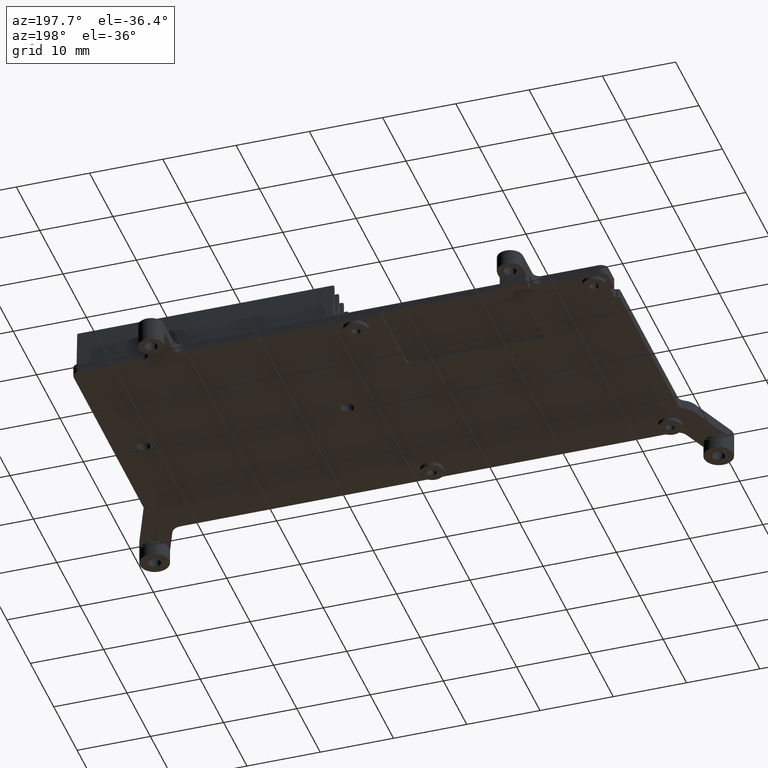
[diagram: clean part render]
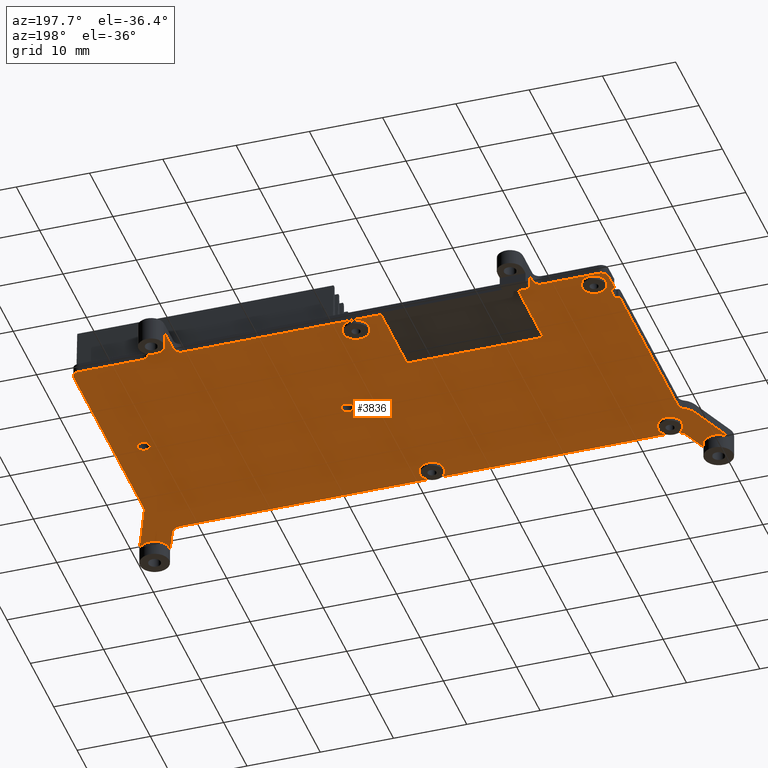
[diagram: same view with one face highlighted and labeled with its STEP entity id]
A machine part, auxiliary view. The second image highlights one B-rep face of the part: STEP entity #3836.
In plain terms, the highlighted planar face has unit normal (0, 0, -1).
Its self-contained STEP definition (entity closure, byte-faithful):
#17 = ORIENTED_EDGE ( 'NONE', *, *, #3969, .T. ) ;
#23 = CIRCLE ( 'NONE', #1099, 0.3400000000000000200 ) ;
#27 = CARTESIAN_POINT ( 'NONE',  ( -33.74940000000000100, -19.86228009754000100, -7.400000000000000400 ) ) ;
#53 = EDGE_CURVE ( 'NONE', #1315, #5070, #2134, .T. ) ;
#61 = DIRECTION ( 'NONE',  ( 0.0000000000000000000, 1.000000000000000000, 0.0000000000000000000 ) ) ;
#83 = ORIENTED_EDGE ( 'NONE', *, *, #2122, .F. ) ;
#93 = ORIENTED_EDGE ( 'NONE', *, *, #2047, .T. ) ;
#104 = CARTESIAN_POINT ( 'NONE',  ( -1.249400000000000100, -19.86228009754000100, -7.400000000000000400 ) ) ;
#130 = CIRCLE ( 'NONE', #2311, 0.8500000000000000900 ) ;
#138 = ORIENTED_EDGE ( 'NONE', *, *, #5088, .T. ) ;
#142 = CIRCLE ( 'NONE', #2017, 0.8500000000000000900 ) ;
#143 = DIRECTION ( 'NONE',  ( 1.000000000000000000, 0.0000000000000000000, 0.0000000000000000000 ) ) ;
#151 = VERTEX_POINT ( 'NONE', #5127 ) ;
#159 = CARTESIAN_POINT ( 'NONE',  ( 26.24929999790000000, 15.53570848731999900, -7.400000000000000400 ) ) ;
#160 = DIRECTION ( 'NONE',  ( -0.0000000000000000000, -0.0000000000000000000, 1.000000000000000000 ) ) ;
#182 = DIRECTION ( 'NONE',  ( 0.0000000000000000000, 0.0000000000000000000, -1.000000000000000000 ) ) ;
#185 = CARTESIAN_POINT ( 'NONE',  ( 37.10862421814842800, -17.00636412341998500, -7.400000000000000400 ) ) ;
#200 = VERTEX_POINT ( 'NONE', #2174 ) ;
#208 = LINE ( 'NONE', #306, #1940 ) ;
#216 = CARTESIAN_POINT ( 'NONE',  ( -26.24929999790000000, 14.53570848732000100, -7.399999999999998600 ) ) ;
#226 = DIRECTION ( 'NONE',  ( -0.0000000000000000000, -0.0000000000000000000, 1.000000000000000000 ) ) ;
#228 = DIRECTION ( 'NONE',  ( -0.0000000000000000000, -1.000000000000000000, -0.0000000000000000000 ) ) ;
#264 = LINE ( 'NONE', #3460, #3193 ) ;
#285 = CARTESIAN_POINT ( 'NONE',  ( -35.99940000000000100, 11.09771990246000200, -7.400000000000000400 ) ) ;
#288 = CIRCLE ( 'NONE', #844, 1.000000000000000900 ) ;
#294 = VERTEX_POINT ( 'NONE', #984 ) ;
#295 = VERTEX_POINT ( 'NONE', #2316 ) ;
#300 = ORIENTED_EDGE ( 'NONE', *, *, #1905, .T. ) ;
#304 = VERTEX_POINT ( 'NONE', #5226 ) ;
#306 = CARTESIAN_POINT ( 'NONE',  ( 51.58500000000000100, 15.07934999999999800, -7.400000000000000400 ) ) ;
#313 = VERTEX_POINT ( 'NONE', #576 ) ;
#316 = CARTESIAN_POINT ( 'NONE',  ( -35.99940000000000100, 10.79771990246000100, -7.400000000000000400 ) ) ;
#325 = CIRCLE ( 'NONE', #3031, 1.999949999998362800 ) ;
#341 = CIRCLE ( 'NONE', #2455, 1.000000000000000900 ) ;
#360 = CIRCLE ( 'NONE', #806, 0.8499999999999965400 ) ;
#374 = DIRECTION ( 'NONE',  ( -1.000000000000000000, -0.0000000000000000000, -0.0000000000000000000 ) ) ;
#384 = EDGE_CURVE ( 'NONE', #1384, #4649, #3993, .T. ) ;
#400 = DIRECTION ( 'NONE',  ( -1.000000000000000000, 0.0000000000000000000, 0.0000000000000000000 ) ) ;
#417 = EDGE_CURVE ( 'NONE', #2895, #1209, #4125, .T. ) ;
#422 = CARTESIAN_POINT ( 'NONE',  ( -38.50054999999999700, -25.78757958294999900, -7.400000000000000400 ) ) ;
#464 = DIRECTION ( 'NONE',  ( -0.0000000000000000000, -0.0000000000000000000, 1.000000000000000000 ) ) ;
#473 = CARTESIAN_POINT ( 'NONE',  ( -26.24929999790000000, 16.68570848729999800, -7.399999999999998600 ) ) ;
#474 = ORIENTED_EDGE ( 'NONE', *, *, #1670, .T. ) ;
#490 = DIRECTION ( 'NONE',  ( -1.000000000000000000, 0.0000000000000000000, 0.0000000000000000000 ) ) ;
#494 = EDGE_CURVE ( 'NONE', #3876, #1771, #603, .T. ) ;
#504 = ORIENTED_EDGE ( 'NONE', *, *, #1499, .T. ) ;
#516 = DIRECTION ( 'NONE',  ( 0.0000000000000000000, 1.000000000000000000, 0.0000000000000000000 ) ) ;
#517 = EDGE_CURVE ( 'NONE', #4581, #3045, #4579, .T. ) ;
#522 = LINE ( 'NONE', #2407, #922 ) ;
#523 = DIRECTION ( 'NONE',  ( -1.000000000000000000, 0.0000000000000000000, 0.0000000000000000000 ) ) ;
#533 = CARTESIAN_POINT ( 'NONE',  ( -40.35377134993999700, -25.03838512674000000, -7.400000000000000400 ) ) ;
#551 = LINE ( 'NONE', #4749, #2673 ) ;
#576 = CARTESIAN_POINT ( 'NONE',  ( -26.24929999790000000, 15.53570848732000100, -7.399999999999999500 ) ) ;
#594 = DIRECTION ( 'NONE',  ( 0.0000000000000000000, 0.0000000000000000000, 1.000000000000000000 ) ) ;
#599 = VERTEX_POINT ( 'NONE', #5465 ) ;
#603 = CIRCLE ( 'NONE', #5148, 0.3400000000000000200 ) ;
#623 = DIRECTION ( 'NONE',  ( -1.000000000000000000, 0.0000000000000000000, 0.0000000000000000000 ) ) ;
#632 = LINE ( 'NONE', #5056, #2828 ) ;
#636 = AXIS2_PLACEMENT_3D ( 'NONE', #2893, #2907, #3759 ) ;
#642 = CARTESIAN_POINT ( 'NONE',  ( -27.24929999789999600, 14.53570848732000100, -7.400000000000000400 ) ) ;
#660 = DIRECTION ( 'NONE',  ( 0.0000000000000000000, 0.0000000000000000000, -1.000000000000000000 ) ) ;
#696 = DIRECTION ( 'NONE',  ( -1.000000000000000000, 0.0000000000000000000, 0.0000000000000000000 ) ) ;
#712 = EDGE_CURVE ( 'NONE', #4139, #295, #3520, .T. ) ;
#714 = VERTEX_POINT ( 'NONE', #2168 ) ;
#721 = ORIENTED_EDGE ( 'NONE', *, *, #2449, .F. ) ;
#745 = LINE ( 'NONE', #1635, #3873 ) ;
#747 = EDGE_CURVE ( 'NONE', #3473, #4325, #4974, .T. ) ;
#749 = DIRECTION ( 'NONE',  ( -1.000000000000000000, 0.0000000000000000000, -0.0000000000000000000 ) ) ;
#760 = CIRCLE ( 'NONE', #2305, 1.999949999998362800 ) ;
#784 = DIRECTION ( 'NONE',  ( 0.0000000000000000000, 0.0000000000000000000, -1.000000000000000000 ) ) ;
#802 = CARTESIAN_POINT ( 'NONE',  ( 36.49950000000163900, -25.78757958323000200, -7.400000000000000400 ) ) ;
#806 = AXIS2_PLACEMENT_3D ( 'NONE', #4859, #2322, #1421 ) ;
#820 = DIRECTION ( 'NONE',  ( 1.000000000000000000, 0.0000000000000000000, 0.0000000000000000000 ) ) ;
#824 = CARTESIAN_POINT ( 'NONE',  ( 51.58500000000000100, 14.53570848731999700, -7.400000000000000400 ) ) ;
#836 = AXIS2_PLACEMENT_3D ( 'NONE', #1871, #1045, #3566 ) ;
#843 = EDGE_CURVE ( 'NONE', #3881, #3061, #1854, .T. ) ;
#844 = AXIS2_PLACEMENT_3D ( 'NONE', #2155, #1748, #4277 ) ;
#850 = DIRECTION ( 'NONE',  ( 0.0000000000000000000, 0.0000000000000000000, -1.000000000000000000 ) ) ;
#858 = CIRCLE ( 'NONE', #3848, 1.599999999999997200 ) ;
#864 = VECTOR ( 'NONE', #3504, 1000.000000000000200 ) ;
#887 = DIRECTION ( 'NONE',  ( -0.0000000000000000000, -0.0000000000000000000, 1.000000000000000000 ) ) ;
#900 = ORIENTED_EDGE ( 'NONE', *, *, #2512, .T. ) ;
#916 = AXIS2_PLACEMENT_3D ( 'NONE', #1861, #4846, #1034 ) ;
#922 = VECTOR ( 'NONE', #3262, 1000.000000000000000 ) ;
#940 = DIRECTION ( 'NONE',  ( -0.0000000000000000000, -0.0000000000000000000, 1.000000000000000000 ) ) ;
#979 = ORIENTED_EDGE ( 'NONE', *, *, #4744, .T. ) ;
#984 = CARTESIAN_POINT ( 'NONE',  ( 21.74939999790000300, 14.53570848731999900, -7.400000000000000400 ) ) ;
#987 = DIRECTION ( 'NONE',  ( -0.0000000000000000000, -0.0000000000000000000, 1.000000000000000000 ) ) ;
#999 = CARTESIAN_POINT ( 'NONE',  ( 27.24929999790000000, 14.53570848731999900, -7.400000000000000400 ) ) ;
#1002 = CARTESIAN_POINT ( 'NONE',  ( 0.5005999999999999300, 12.63771990246000100, -7.400000000000000400 ) ) ;
#1029 = CARTESIAN_POINT ( 'NONE',  ( -33.74940000000000100, 12.63771990246000100, -7.400000000000000400 ) ) ;
#1034 = DIRECTION ( 'NONE',  ( 1.000000000000000000, 0.0000000000000000000, 0.0000000000000000000 ) ) ;
#1045 = DIRECTION ( 'NONE',  ( -0.0000000000000000000, -0.0000000000000000000, 1.000000000000000000 ) ) ;
#1073 = EDGE_LOOP ( 'NONE', ( #4057, #2222 ) ) ;
#1072 = DIRECTION ( 'NONE',  ( 0.0000000000000000000, 0.0000000000000000000, 1.000000000000000000 ) ) ;
#1077 = CARTESIAN_POINT ( 'NONE',  ( -5.599400000000000200, 3.719350000000000400, -7.400000000000000400 ) ) ;
#1095 = ORIENTED_EDGE ( 'NONE', *, *, #4827, .T. ) ;
#1099 = AXIS2_PLACEMENT_3D ( 'NONE', #2287, #594, #4012 ) ;
#1103 = CIRCLE ( 'NONE', #3761, 1.500000000000001300 ) ;
#1115 = CARTESIAN_POINT ( 'NONE',  ( 36.64512865006999900, -26.53677403975000000, -7.400000000000000400 ) ) ;
#1116 = DIRECTION ( 'NONE',  ( -1.000000000000000000, 0.0000000000000000000, 0.0000000000000000000 ) ) ;
#1177 = CIRCLE ( 'NONE', #5308, 2.500000000000002200 ) ;
#1189 = ORIENTED_EDGE ( 'NONE', *, *, #3202, .T. ) ;
#1209 = VERTEX_POINT ( 'NONE', #2849 ) ;
#1290 = AXIS2_PLACEMENT_3D ( 'NONE', #422, #4691, #2153 ) ;
#1297 = ORIENTED_EDGE ( 'NONE', *, *, #5292, .T. ) ;
#1302 = CARTESIAN_POINT ( 'NONE',  ( -37.64088355022396100, -18.32375219885128500, -7.400000000000000400 ) ) ;
#1310 = ORIENTED_EDGE ( 'NONE', *, *, #517, .T. ) ;
#1315 = VERTEX_POINT ( 'NONE', #3465 ) ;
#1330 = CIRCLE ( 'NONE', #4097, 1.599999999999997200 ) ;
#1333 = LINE ( 'NONE', #216, #3450 ) ;
#1339 = CIRCLE ( 'NONE', #636, 1.600000000000000100 ) ;
#1367 = CARTESIAN_POINT ( 'NONE',  ( -23.51940000000000500, 3.379350000000001400, -7.400000000000000400 ) ) ;
#1368 = VERTEX_POINT ( 'NONE', #4797 ) ;
#1369 = VERTEX_POINT ( 'NONE', #5228 ) ;
#1384 = VERTEX_POINT ( 'NONE', #185 ) ;
#1405 = VERTEX_POINT ( 'NONE', #5242 ) ;
#1413 = FACE_BOUND ( 'NONE', #1937, .T. ) ;
#1418 = VERTEX_POINT ( 'NONE', #1002 ) ;
#1421 = DIRECTION ( 'NONE',  ( 1.000000000000000000, 0.0000000000000000000, 0.0000000000000000000 ) ) ;
#1438 = CIRCLE ( 'NONE', #4683, 1.749950000000000100 ) ;
#1446 = EDGE_LOOP ( 'NONE', ( #721, #1310, #4087, #5021, #5374, #1607, #2875, #3238, #1095, #4875, #900, #2050, #83, #4990, #93, #5414, #300, #3360, #5287, #17, #2278, #979, #4607, #5101, #2060, #474, #2830, #1880, #1189, #5233, #1297, #1738, #3533, #4225, #3208, #3191, #4520, #5065, #3764, #5466, #5391, #2510, #3143, #504, #4210, #1576, #3103 ) ) ;
#1457 = EDGE_CURVE ( 'NONE', #4193, #1418, #3833, .T. ) ;
#1462 = CARTESIAN_POINT ( 'NONE',  ( -36.49950000000501400, -25.78757958294999900, -7.400000000000000400 ) ) ;
#1495 = CARTESIAN_POINT ( 'NONE',  ( -35.34940000000000300, 9.097719902459999700, -7.400000000000000400 ) ) ;
#1499 = EDGE_CURVE ( 'NONE', #4986, #3595, #4545, .T. ) ;
#1500 = VERTEX_POINT ( 'NONE', #5343 ) ;
#1521 = EDGE_CURVE ( 'NONE', #3903, #2901, #1177, .T. ) ;
#1541 = VERTEX_POINT ( 'NONE', #285 ) ;
#1556 = CARTESIAN_POINT ( 'NONE',  ( -22.74939999789999900, 19.53570848732000100, -7.399999999999998600 ) ) ;
#1576 = ORIENTED_EDGE ( 'NONE', *, *, #384, .T. ) ;
#1607 = ORIENTED_EDGE ( 'NONE', *, *, #1808, .T. ) ;
#1610 = CARTESIAN_POINT ( 'NONE',  ( 51.58500000000000100, -21.76026868240000000, -7.400000000000000400 ) ) ;
#1631 = EDGE_CURVE ( 'NONE', #295, #4986, #5350, .T. ) ;
#1635 = CARTESIAN_POINT ( 'NONE',  ( -35.99940000000000900, -30.20401168865000200, -7.400000000000000400 ) ) ;
#1645 = DIRECTION ( 'NONE',  ( 0.0000000000000000000, 1.000000000000000000, 0.0000000000000000000 ) ) ;
#1664 = AXIS2_PLACEMENT_3D ( 'NONE', #2405, #3699, #5442 ) ;
#1670 = EDGE_CURVE ( 'NONE', #304, #1956, #3755, .T. ) ;
#1673 = CARTESIAN_POINT ( 'NONE',  ( 38.49940000000000100, -16.44445423331000100, -7.400000000000000400 ) ) ;
#1676 = AXIS2_PLACEMENT_3D ( 'NONE', #4238, #1709, #2559 ) ;
#1678 = LINE ( 'NONE', #316, #2806 ) ;
#1685 = CARTESIAN_POINT ( 'NONE',  ( 5.099999999999999600, -3.612280097539999800, -7.400000000000000400 ) ) ;
#1689 = LINE ( 'NONE', #4195, #3407 ) ;
#1697 = EDGE_CURVE ( 'NONE', #1368, #3949, #2759, .T. ) ;
#1708 = ORIENTED_EDGE ( 'NONE', *, *, #3080, .T. ) ;
#1709 = DIRECTION ( 'NONE',  ( -0.0000000000000000000, -0.0000000000000000000, 1.000000000000000000 ) ) ;
#1717 = DIRECTION ( 'NONE',  ( -1.000000000000000000, 0.0000000000000000000, 0.0000000000000000000 ) ) ;
#1722 = EDGE_CURVE ( 'NONE', #3508, #304, #1894, .T. ) ;
#1727 = LINE ( 'NONE', #2187, #2715 ) ;
#1730 = VECTOR ( 'NONE', #4715, 1000.000000000000000 ) ;
#1738 = ORIENTED_EDGE ( 'NONE', *, *, #2110, .T. ) ;
#1739 = CIRCLE ( 'NONE', #916, 0.3000000000000016500 ) ;
#1740 = EDGE_CURVE ( 'NONE', #4248, #2313, #5139, .T. ) ;
#1748 = DIRECTION ( 'NONE',  ( 0.0000000000000000000, 0.0000000000000000000, 1.000000000000000000 ) ) ;
#1761 = CIRCLE ( 'NONE', #836, 0.3000000000000016500 ) ;
#1770 = EDGE_CURVE ( 'NONE', #3416, #714, #4946, .T. ) ;
#1771 = VERTEX_POINT ( 'NONE', #3738 ) ;
#1790 = AXIS2_PLACEMENT_3D ( 'NONE', #5157, #1840, #490 ) ;
#1804 = CARTESIAN_POINT ( 'NONE',  ( 51.58500000000000100, 3.379350000000003200, -7.400000000000000400 ) ) ;
#1807 = ORIENTED_EDGE ( 'NONE', *, *, #3379, .T. ) ;
#1808 = EDGE_CURVE ( 'NONE', #3702, #4997, #1958, .T. ) ;
#1809 = FACE_BOUND ( 'NONE', #3314, .T. ) ;
#1811 = DIRECTION ( 'NONE',  ( 0.0000000000000000000, 0.0000000000000000000, 1.000000000000000000 ) ) ;
#1820 = CARTESIAN_POINT ( 'NONE',  ( -35.34939999999999600, -19.86228009754000100, -7.400000000000000400 ) ) ;
#1822 = VERTEX_POINT ( 'NONE', #802 ) ;
#1835 = ORIENTED_EDGE ( 'NONE', *, *, #2102, .T. ) ;
#1840 = DIRECTION ( 'NONE',  ( 0.0000000000000000000, 0.0000000000000000000, -1.000000000000000000 ) ) ;
#1853 = DIRECTION ( 'NONE',  ( 0.0000000000000000000, 1.000000000000000000, 0.0000000000000000000 ) ) ;
#1854 = CIRCLE ( 'NONE', #1790, 0.4000000000000010200 ) ;
#1859 = CIRCLE ( 'NONE', #2522, 1.500000000000001300 ) ;
#1861 = CARTESIAN_POINT ( 'NONE',  ( -35.69939999999999700, 11.09771990246000000, -7.400000000000000400 ) ) ;
#1865 = CIRCLE ( 'NONE', #4895, 1.500000000000001300 ) ;
#1867 = EDGE_CURVE ( 'NONE', #1771, #2403, #632, .T. ) ;
#1871 = CARTESIAN_POINT ( 'NONE',  ( -35.69939999999999700, 8.497719902460000100, -7.400000000000000400 ) ) ;
#1873 = EDGE_LOOP ( 'NONE', ( #4530, #4561 ) ) ;
#1880 = ORIENTED_EDGE ( 'NONE', *, *, #843, .T. ) ;
#1882 = CARTESIAN_POINT ( 'NONE',  ( -27.24929999790000000, 15.53570848732000100, -7.400000000000000400 ) ) ;
#1894 = LINE ( 'NONE', #2033, #3088 ) ;
#1905 = EDGE_CURVE ( 'NONE', #2624, #1950, #3617, .T. ) ;
#1907 = AXIS2_PLACEMENT_3D ( 'NONE', #4873, #2302, #3613 ) ;
#1917 = CARTESIAN_POINT ( 'NONE',  ( 38.49945000000000300, -25.78757958323000200, -7.400000000000000400 ) ) ;
#1921 = EDGE_CURVE ( 'NONE', #3045, #1368, #1103, .T. ) ;
#1925 = VECTOR ( 'NONE', #3315, 1000.000000000000100 ) ;
#1937 = EDGE_LOOP ( 'NONE', ( #1708, #3069 ) ) ;
#1940 = VECTOR ( 'NONE', #4152, 1000.000000000000000 ) ;
#1942 = AXIS2_PLACEMENT_3D ( 'NONE', #4678, #4596, #3927 ) ;
#1946 = CARTESIAN_POINT ( 'NONE',  ( -35.69939999999999700, 10.79771990245999900, -7.400000000000000400 ) ) ;
#1950 = VERTEX_POINT ( 'NONE', #4767 ) ;
#1951 = AXIS2_PLACEMENT_3D ( 'NONE', #5444, #784, #3959 ) ;
#1956 = VERTEX_POINT ( 'NONE', #2237 ) ;
#1958 = LINE ( 'NONE', #2068, #4151 ) ;
#1960 = CARTESIAN_POINT ( 'NONE',  ( 36.99940000000000100, -30.20401168865000200, -7.400000000000000400 ) ) ;
#1967 = CARTESIAN_POINT ( 'NONE',  ( 24.49934999790000100, 19.53570848732000100, -7.400000000000000400 ) ) ;
#1972 = EDGE_CURVE ( 'NONE', #5070, #4997, #2499, .T. ) ;
#1983 = CARTESIAN_POINT ( 'NONE',  ( 33.74999999999999300, -3.612280097539999800, -7.400000000000000400 ) ) ;
#2004 = FACE_BOUND ( 'NONE', #1873, .T. ) ;
#2005 = CARTESIAN_POINT ( 'NONE',  ( -5.259399999999998500, 14.53570848731999700, -7.400000000000000400 ) ) ;
#2014 = VERTEX_POINT ( 'NONE', #3907 ) ;
#2017 = AXIS2_PLACEMENT_3D ( 'NONE', #1685, #5042, #820 ) ;
#2022 = VERTEX_POINT ( 'NONE', #1367 ) ;
#2033 = CARTESIAN_POINT ( 'NONE',  ( 51.58500000000000100, 16.68570848729999800, -7.400000000000000400 ) ) ;
#2047 = EDGE_CURVE ( 'NONE', #200, #3099, #4676, .T. ) ;
#2050 = ORIENTED_EDGE ( 'NONE', *, *, #3282, .T. ) ;
#2055 = EDGE_CURVE ( 'NONE', #2880, #1500, #4333, .T. ) ;
#2060 = ORIENTED_EDGE ( 'NONE', *, *, #1722, .T. ) ;
#2068 = CARTESIAN_POINT ( 'NONE',  ( -35.09430822443000200, -22.69835879225999900, -7.400000000000000400 ) ) ;
#2096 = VECTOR ( 'NONE', #749, 1000.000000000000000 ) ;
#2102 = EDGE_CURVE ( 'NONE', #3655, #2182, #360, .T. ) ;
#2110 = EDGE_CURVE ( 'NONE', #1369, #2022, #23, .T. ) ;
#2114 = DIRECTION ( 'NONE',  ( -0.0000000000000000000, -0.0000000000000000000, 1.000000000000000000 ) ) ;
#2122 = EDGE_CURVE ( 'NONE', #599, #3815, #1761, .T. ) ;
#2123 = CARTESIAN_POINT ( 'NONE',  ( 5.949999999999999300, -3.612280097539999800, -7.400000000000000400 ) ) ;
#2134 = CIRCLE ( 'NONE', #1290, 2.001049999994980200 ) ;
#2149 = CARTESIAN_POINT ( 'NONE',  ( 0.3505999999999999700, -19.86228009754000100, -7.400000000000000400 ) ) ;
#2153 = DIRECTION ( 'NONE',  ( -1.000000000000000000, 0.0000000000000000000, 0.0000000000000000000 ) ) ;
#2155 = CARTESIAN_POINT ( 'NONE',  ( -36.99940000000000100, -16.18790348073000000, -7.400000000000000400 ) ) ;
#2168 = CARTESIAN_POINT ( 'NONE',  ( -23.85940000000000100, 14.73935000000000000, -7.400000000000000400 ) ) ;
#2174 = CARTESIAN_POINT ( 'NONE',  ( -35.64940000000000000, 8.797719902460000800, -7.400000000000000400 ) ) ;
#2180 = CARTESIAN_POINT ( 'NONE',  ( 33.70353244259000300, -23.26026868240000300, -7.400000000000000400 ) ) ;
#2182 = VERTEX_POINT ( 'NONE', #1983 ) ;
#2184 = CARTESIAN_POINT ( 'NONE',  ( -23.51940000000000500, 15.07934999999999800, -7.400000000000000400 ) ) ;
#2187 = CARTESIAN_POINT ( 'NONE',  ( 51.58500000000000100, 14.53570848731999700, -7.400000000000000400 ) ) ;
#2222 = ORIENTED_EDGE ( 'NONE', *, *, #4765, .T. ) ;
#2233 = VERTEX_POINT ( 'NONE', #1946 ) ;
#2237 = CARTESIAN_POINT ( 'NONE',  ( -22.74939999790000300, 15.53570848732000100, -7.399999999999999500 ) ) ;
#2241 = EDGE_CURVE ( 'NONE', #1500, #3473, #1438, .T. ) ;
#2246 = CARTESIAN_POINT ( 'NONE',  ( -33.70353244259000300, -21.76026868240000000, -7.400000000000000400 ) ) ;
#2250 = DIRECTION ( 'NONE',  ( 1.000000000000000000, -0.0000000000000000000, 0.0000000000000000000 ) ) ;
#2278 = ORIENTED_EDGE ( 'NONE', *, *, #1740, .T. ) ;
#2287 = CARTESIAN_POINT ( 'NONE',  ( -23.51940000000000500, 3.719350000000000400, -7.400000000000000400 ) ) ;
#2295 = VECTOR ( 'NONE', #228, 1000.000000000000000 ) ;
#2302 = DIRECTION ( 'NONE',  ( -0.0000000000000000000, -0.0000000000000000000, 1.000000000000000000 ) ) ;
#2305 = AXIS2_PLACEMENT_3D ( 'NONE', #2564, #850, #3788 ) ;
#2306 = DIRECTION ( 'NONE',  ( -0.0000000000000000000, 1.000000000000000000, 0.0000000000000000000 ) ) ;
#2310 = DIRECTION ( 'NONE',  ( 0.0000000000000000000, 0.0000000000000000000, -1.000000000000000000 ) ) ;
#2311 = AXIS2_PLACEMENT_3D ( 'NONE', #3559, #1072, #3535 ) ;
#2313 = VERTEX_POINT ( 'NONE', #4611 ) ;
#2316 = CARTESIAN_POINT ( 'NONE',  ( 35.99940000000000100, 14.53570848731999900, -7.400000000000000400 ) ) ;
#2319 = CARTESIAN_POINT ( 'NONE',  ( 35.09430822444668500, -22.69835879228727300, -7.400000000000000400 ) ) ;
#2322 = DIRECTION ( 'NONE',  ( 0.0000000000000000000, 0.0000000000000000000, 1.000000000000000000 ) ) ;
#2370 = CARTESIAN_POINT ( 'NONE',  ( 35.99940000000000100, 13.53570848732000100, -7.400000000000000400 ) ) ;
#2403 = VERTEX_POINT ( 'NONE', #2005 ) ;
#2405 = CARTESIAN_POINT ( 'NONE',  ( -23.51940000000000500, 14.73935000000000000, -7.400000000000000400 ) ) ;
#2407 = CARTESIAN_POINT ( 'NONE',  ( -23.85939999999999700, -30.20401168865000200, -7.400000000000000400 ) ) ;
#2419 = CIRCLE ( 'NONE', #4858, 1.600000000000000100 ) ;
#2449 = EDGE_CURVE ( 'NONE', #4581, #1822, #760, .T. ) ;
#2455 = AXIS2_PLACEMENT_3D ( 'NONE', #1882, #4373, #3166 ) ;
#2485 = CARTESIAN_POINT ( 'NONE',  ( -35.99940000000000100, 8.497719902460000100, -7.400000000000000400 ) ) ;
#2498 = EDGE_LOOP ( 'NONE', ( #3708, #4874 ) ) ;
#2499 = CIRCLE ( 'NONE', #3647, 2.001049999994980200 ) ;
#2510 = ORIENTED_EDGE ( 'NONE', *, *, #712, .T. ) ;
#2512 = EDGE_CURVE ( 'NONE', #2901, #2014, #288, .T. ) ;
#2514 = CARTESIAN_POINT ( 'NONE',  ( -35.34940000000000300, 10.49771990245999800, -7.400000000000000400 ) ) ;
#2522 = AXIS2_PLACEMENT_3D ( 'NONE', #1673, #2949, #400 ) ;
#2546 = VECTOR ( 'NONE', #2250, 1000.000000000000000 ) ;
#2557 = AXIS2_PLACEMENT_3D ( 'NONE', #4323, #940, #4301 ) ;
#2559 = DIRECTION ( 'NONE',  ( -1.000000000000000000, 0.0000000000000000000, 0.0000000000000000000 ) ) ;
#2564 = CARTESIAN_POINT ( 'NONE',  ( 38.49945000000000300, -25.78757958323000200, -7.400000000000000400 ) ) ;
#2567 = AXIS2_PLACEMENT_3D ( 'NONE', #4338, #1811, #143 ) ;
#2577 = DIRECTION ( 'NONE',  ( -1.000000000000000000, 0.0000000000000000000, 0.0000000000000000000 ) ) ;
#2597 = VERTEX_POINT ( 'NONE', #2123 ) ;
#2598 = FACE_BOUND ( 'NONE', #1073, .T. ) ;
#2621 = CARTESIAN_POINT ( 'NONE',  ( 36.64512865006538100, -26.53677403974094800, -7.400000000000000400 ) ) ;
#2624 = VERTEX_POINT ( 'NONE', #2514 ) ;
#2628 = EDGE_CURVE ( 'NONE', #2597, #1405, #142, .T. ) ;
#2640 = DIRECTION ( 'NONE',  ( -0.0000000000000000000, -0.0000000000000000000, 1.000000000000000000 ) ) ;
#2665 = EDGE_CURVE ( 'NONE', #599, #200, #1689, .T. ) ;
#2669 = FACE_OUTER_BOUND ( 'NONE', #1446, .T. ) ;
#2673 = VECTOR ( 'NONE', #516, 1000.000000000000000 ) ;
#2676 = CARTESIAN_POINT ( 'NONE',  ( -35.64940000000000000, 9.097719902459999700, -7.400000000000000400 ) ) ;
#2679 = LINE ( 'NONE', #1804, #2546 ) ;
#2698 = VERTEX_POINT ( 'NONE', #3342 ) ;
#2715 = VECTOR ( 'NONE', #3828, 1000.000000000000000 ) ;
#2737 = CIRCLE ( 'NONE', #1676, 1.000000000000000900 ) ;
#2759 = LINE ( 'NONE', #1610, #2096 ) ;
#2806 = VECTOR ( 'NONE', #374, 1000.000000000000000 ) ;
#2811 = AXIS2_PLACEMENT_3D ( 'NONE', #3817, #464, #3851 ) ;
#2817 = CARTESIAN_POINT ( 'NONE',  ( -35.09430822443186300, -22.69835879226461000, -7.400000000000000400 ) ) ;
#2828 = VECTOR ( 'NONE', #1645, 1000.000000000000000 ) ;
#2830 = ORIENTED_EDGE ( 'NONE', *, *, #4507, .T. ) ;
#2842 = CARTESIAN_POINT ( 'NONE',  ( -1.249400000000000100, 12.63771990246000100, -7.400000000000000400 ) ) ;
#2849 = CARTESIAN_POINT ( 'NONE',  ( -32.14940000000000000, -19.86228009754000100, -7.400000000000000400 ) ) ;
#2858 = DIRECTION ( 'NONE',  ( 0.0000000000000000000, 0.0000000000000000000, 1.000000000000000000 ) ) ;
#2872 = CARTESIAN_POINT ( 'NONE',  ( -34.99940000000000100, 13.53570848732000100, -7.400000000000000400 ) ) ;
#2875 = ORIENTED_EDGE ( 'NONE', *, *, #1972, .F. ) ;
#2879 = CARTESIAN_POINT ( 'NONE',  ( -35.34939999999999600, 12.63771990246000100, -7.400000000000000400 ) ) ;
#2880 = VERTEX_POINT ( 'NONE', #3509 ) ;
#2893 = CARTESIAN_POINT ( 'NONE',  ( -1.249400000000000100, -19.86228009754000100, -7.400000000000000400 ) ) ;
#2895 = VERTEX_POINT ( 'NONE', #1820 ) ;
#2901 = VERTEX_POINT ( 'NONE', #4311 ) ;
#2906 = EDGE_CURVE ( 'NONE', #2022, #3876, #2679, .T. ) ;
#2907 = DIRECTION ( 'NONE',  ( -0.0000000000000000000, -0.0000000000000000000, 1.000000000000000000 ) ) ;
#2936 = EDGE_CURVE ( 'NONE', #3480, #2698, #2419, .T. ) ;
#2943 = EDGE_CURVE ( 'NONE', #3099, #2624, #551, .T. ) ;
#2949 = DIRECTION ( 'NONE',  ( -0.0000000000000000000, -0.0000000000000000000, 1.000000000000000000 ) ) ;
#3029 = VECTOR ( 'NONE', #4562, 1000.000000000000000 ) ;
#3031 = AXIS2_PLACEMENT_3D ( 'NONE', #1917, #182, #623 ) ;
#3045 = VERTEX_POINT ( 'NONE', #2319 ) ;
#3061 = VERTEX_POINT ( 'NONE', #4007 ) ;
#3068 = DIRECTION ( 'NONE',  ( 0.0000000000000000000, 0.0000000000000000000, -1.000000000000000000 ) ) ;
#3069 = ORIENTED_EDGE ( 'NONE', *, *, #5118, .T. ) ;
#3080 = EDGE_CURVE ( 'NONE', #3221, #151, #5463, .T. ) ;
#3088 = VECTOR ( 'NONE', #4991, 1000.000000000000000 ) ;
#3099 = VERTEX_POINT ( 'NONE', #1495 ) ;
#3103 = ORIENTED_EDGE ( 'NONE', *, *, #4893, .F. ) ;
#3118 = LINE ( 'NONE', #533, #864 ) ;
#3119 = CIRCLE ( 'NONE', #2567, 0.8499999999999965400 ) ;
#3143 = ORIENTED_EDGE ( 'NONE', *, *, #1631, .T. ) ;
#3166 = DIRECTION ( 'NONE',  ( -1.000000000000000000, 0.0000000000000000000, 0.0000000000000000000 ) ) ;
#3191 = ORIENTED_EDGE ( 'NONE', *, *, #4886, .T. ) ;
#3193 = VECTOR ( 'NONE', #61, 1000.000000000000000 ) ;
#3202 = EDGE_CURVE ( 'NONE', #3061, #3416, #208, .T. ) ;
#3208 = ORIENTED_EDGE ( 'NONE', *, *, #1867, .T. ) ;
#3221 = VERTEX_POINT ( 'NONE', #2879 ) ;
#3226 = CARTESIAN_POINT ( 'NONE',  ( -35.99940000000000100, 13.53570848732000100, -7.400000000000000400 ) ) ;
#3238 = ORIENTED_EDGE ( 'NONE', *, *, #53, .F. ) ;
#3261 = CARTESIAN_POINT ( 'NONE',  ( 32.05000000000000400, -3.612280097539999800, -7.400000000000000400 ) ) ;
#3262 = DIRECTION ( 'NONE',  ( -0.0000000000000000000, -1.000000000000000000, -0.0000000000000000000 ) ) ;
#3282 = EDGE_CURVE ( 'NONE', #2014, #3815, #745, .T. ) ;
#3309 = DIRECTION ( 'NONE',  ( 1.000000000000000000, 0.0000000000000000000, 0.0000000000000000000 ) ) ;
#3310 = EDGE_CURVE ( 'NONE', #294, #2880, #2737, .T. ) ;
#3314 = EDGE_LOOP ( 'NONE', ( #4262, #1807 ) ) ;
#3315 = DIRECTION ( 'NONE',  ( -0.3746065934160818200, 0.9271838545667188100, 0.0000000000000000000 ) ) ;
#3342 = CARTESIAN_POINT ( 'NONE',  ( -2.849400000000000200, -19.86228009754000100, -7.400000000000000400 ) ) ;
#3360 = ORIENTED_EDGE ( 'NONE', *, *, #3793, .T. ) ;
#3379 = EDGE_CURVE ( 'NONE', #1418, #4193, #4987, .T. ) ;
#3407 = VECTOR ( 'NONE', #3309, 1000.000000000000000 ) ;
#3416 = VERTEX_POINT ( 'NONE', #2184 ) ;
#3424 = CARTESIAN_POINT ( 'NONE',  ( 26.24929999790000000, -30.20401168865000200, -7.400000000000000400 ) ) ;
#3447 = AXIS2_PLACEMENT_3D ( 'NONE', #4472, #226, #5321 ) ;
#3450 = VECTOR ( 'NONE', #2306, 1000.000000000000000 ) ;
#3460 = CARTESIAN_POINT ( 'NONE',  ( -35.99940000000000900, -30.20401168865000200, -7.400000000000000400 ) ) ;
#3465 = CARTESIAN_POINT ( 'NONE',  ( -40.31943022758854800, -24.95338786627612700, -7.400000000000000400 ) ) ;
#3472 = CARTESIAN_POINT ( 'NONE',  ( -38.50054999999999700, -25.78757958294999900, -7.400000000000000400 ) ) ;
#3473 = VERTEX_POINT ( 'NONE', #3502 ) ;
#3480 = VERTEX_POINT ( 'NONE', #2149 ) ;
#3495 = DIRECTION ( 'NONE',  ( -1.000000000000000000, 0.0000000000000000000, 0.0000000000000000000 ) ) ;
#3502 = CARTESIAN_POINT ( 'NONE',  ( 26.24929999790000300, 19.53570848732000100, -7.399999999999999500 ) ) ;
#3504 = DIRECTION ( 'NONE',  ( 0.3746065934149731000, 0.9271838545671666800, 0.0000000000000000000 ) ) ;
#3508 = VERTEX_POINT ( 'NONE', #473 ) ;
#3509 = CARTESIAN_POINT ( 'NONE',  ( 22.74939999789999900, 15.53570848731999900, -7.400000000000000400 ) ) ;
#3513 = EDGE_CURVE ( 'NONE', #4093, #313, #341, .T. ) ;
#3520 = LINE ( 'NONE', #824, #5384 ) ;
#3533 = ORIENTED_EDGE ( 'NONE', *, *, #2906, .T. ) ;
#3535 = DIRECTION ( 'NONE',  ( 1.000000000000000000, 0.0000000000000000000, 0.0000000000000000000 ) ) ;
#3541 = DIRECTION ( 'NONE',  ( -1.000000000000000000, 0.0000000000000000000, 0.0000000000000000000 ) ) ;
#3546 = AXIS2_PLACEMENT_3D ( 'NONE', #2676, #3972, #5291 ) ;
#3559 = CARTESIAN_POINT ( 'NONE',  ( 5.099999999999999600, -3.612280097539999800, -7.400000000000000400 ) ) ;
#3566 = DIRECTION ( 'NONE',  ( -1.000000000000000000, 0.0000000000000000000, 0.0000000000000000000 ) ) ;
#3572 = EDGE_CURVE ( 'NONE', #1541, #2233, #1739, .T. ) ;
#3595 = VERTEX_POINT ( 'NONE', #4468 ) ;
#3613 = DIRECTION ( 'NONE',  ( -1.000000000000000000, 0.0000000000000000000, 0.0000000000000000000 ) ) ;
#3617 = CIRCLE ( 'NONE', #1942, 0.3000000000000016500 ) ;
#3633 = DIRECTION ( 'NONE',  ( -0.0000000000000000000, -0.0000000000000000000, 1.000000000000000000 ) ) ;
#3641 = CARTESIAN_POINT ( 'NONE',  ( -2.999400000000000100, 12.63771990246000100, -7.400000000000000400 ) ) ;
#3647 = AXIS2_PLACEMENT_3D ( 'NONE', #3472, #3068, #3495 ) ;
#3655 = VERTEX_POINT ( 'NONE', #3261 ) ;
#3675 = CARTESIAN_POINT ( 'NONE',  ( -21.74939999790000300, 15.53570848732000100, -7.400000000000000400 ) ) ;
#3699 = DIRECTION ( 'NONE',  ( 0.0000000000000000000, 0.0000000000000000000, 1.000000000000000000 ) ) ;
#3702 = VERTEX_POINT ( 'NONE', #2817 ) ;
#3708 = ORIENTED_EDGE ( 'NONE', *, *, #2628, .T. ) ;
#3717 = DIRECTION ( 'NONE',  ( -1.000000000000000000, 0.0000000000000000000, 0.0000000000000000000 ) ) ;
#3722 = EDGE_CURVE ( 'NONE', #2698, #3480, #1339, .T. ) ;
#3738 = CARTESIAN_POINT ( 'NONE',  ( -5.259399999999999400, 3.719349999999999900, -7.400000000000000400 ) ) ;
#3750 = VECTOR ( 'NONE', #1853, 1000.000000000000000 ) ;
#3755 = LINE ( 'NONE', #1556, #3029 ) ;
#3759 = DIRECTION ( 'NONE',  ( -1.000000000000000000, 0.0000000000000000000, 0.0000000000000000000 ) ) ;
#3761 = AXIS2_PLACEMENT_3D ( 'NONE', #2180, #2640, #3891 ) ;
#3764 = ORIENTED_EDGE ( 'NONE', *, *, #2241, .T. ) ;
#3788 = DIRECTION ( 'NONE',  ( -1.000000000000000000, 0.0000000000000000000, 0.0000000000000000000 ) ) ;
#3793 = EDGE_CURVE ( 'NONE', #1950, #2233, #1678, .T. ) ;
#3802 = DIRECTION ( 'NONE',  ( 1.000000000000000000, -0.0000000000000000000, 0.0000000000000000000 ) ) ;
#3815 = VERTEX_POINT ( 'NONE', #2485 ) ;
#3817 = CARTESIAN_POINT ( 'NONE',  ( 27.24929999790000000, 15.53570848732000100, -7.400000000000000400 ) ) ;
#3828 = DIRECTION ( 'NONE',  ( 1.000000000000000000, -0.0000000000000000000, 0.0000000000000000000 ) ) ;
#3833 = CIRCLE ( 'NONE', #5015, 1.750000000000000000 ) ;
#3836 = ADVANCED_FACE ( 'NONE', ( #2669, #5047, #3936, #1413, #2598, #1809, #2004 ), #5011, .T. ) ;
#3838 = EDGE_CURVE ( 'NONE', #3949, #3702, #1865, .T. ) ;
#3846 = CARTESIAN_POINT ( 'NONE',  ( -5.599400000000000200, 3.379350000000001400, -7.400000000000000400 ) ) ;
#3848 = AXIS2_PLACEMENT_3D ( 'NONE', #27, #887, #3863 ) ;
#3851 = DIRECTION ( 'NONE',  ( -1.000000000000000000, 0.0000000000000000000, 0.0000000000000000000 ) ) ;
#3863 = DIRECTION ( 'NONE',  ( -1.000000000000000000, 0.0000000000000000000, 0.0000000000000000000 ) ) ;
#3873 = VECTOR ( 'NONE', #4207, 1000.000000000000000 ) ;
#3876 = VERTEX_POINT ( 'NONE', #3846 ) ;
#3881 = VERTEX_POINT ( 'NONE', #4667 ) ;
#3891 = DIRECTION ( 'NONE',  ( -1.000000000000000000, 2.312964634635740700E-015, 0.0000000000000000000 ) ) ;
#3903 = VERTEX_POINT ( 'NONE', #1302 ) ;
#3905 = CARTESIAN_POINT ( 'NONE',  ( 40.35377134993981900, -25.03838512672966100, -7.400000000000000400 ) ) ;
#3907 = CARTESIAN_POINT ( 'NONE',  ( -35.99940000000000100, -16.18790348073000000, -7.400000000000000400 ) ) ;
#3908 = EDGE_CURVE ( 'NONE', #3595, #1384, #1859, .T. ) ;
#3927 = DIRECTION ( 'NONE',  ( 1.000000000000000000, 0.0000000000000000000, 0.0000000000000000000 ) ) ;
#3928 = VECTOR ( 'NONE', #4027, 1000.000000000000100 ) ;
#3936 = FACE_BOUND ( 'NONE', #4405, .T. ) ;
#3949 = VERTEX_POINT ( 'NONE', #2246 ) ;
#3959 = DIRECTION ( 'NONE',  ( -1.000000000000000000, 0.0000000000000000000, -0.0000000000000000000 ) ) ;
#3969 = EDGE_CURVE ( 'NONE', #1541, #4248, #264, .T. ) ;
#3972 = DIRECTION ( 'NONE',  ( 0.0000000000000000000, 0.0000000000000000000, 1.000000000000000000 ) ) ;
#3993 = LINE ( 'NONE', #4795, #3928 ) ;
#4007 = CARTESIAN_POINT ( 'NONE',  ( -23.14826515255000300, 15.07934999999999800, -7.400000000000000400 ) ) ;
#4012 = DIRECTION ( 'NONE',  ( 1.000000000000000000, 0.0000000000000000000, 0.0000000000000000000 ) ) ;
#4027 = DIRECTION ( 'NONE',  ( 0.3746065934153117700, -0.9271838545670299000, 0.0000000000000000000 ) ) ;
#4057 = ORIENTED_EDGE ( 'NONE', *, *, #417, .T. ) ;
#4058 = CARTESIAN_POINT ( 'NONE',  ( 36.99940000000000100, 13.53570848732000100, -7.400000000000000400 ) ) ;
#4063 = CARTESIAN_POINT ( 'NONE',  ( -35.32292391381000100, -19.26026868240000300, -7.400000000000000400 ) ) ;
#4087 = ORIENTED_EDGE ( 'NONE', *, *, #1921, .T. ) ;
#4093 = VERTEX_POINT ( 'NONE', #642 ) ;
#4095 = EDGE_CURVE ( 'NONE', #1405, #2597, #130, .T. ) ;
#4097 = AXIS2_PLACEMENT_3D ( 'NONE', #1029, #160, #523 ) ;
#4125 = CIRCLE ( 'NONE', #3447, 1.599999999999997200 ) ;
#4139 = VERTEX_POINT ( 'NONE', #999 ) ;
#4151 = VECTOR ( 'NONE', #5022, 1000.000000000000200 ) ;
#4152 = DIRECTION ( 'NONE',  ( -1.000000000000000000, 0.0000000000000000000, -0.0000000000000000000 ) ) ;
#4182 = CIRCLE ( 'NONE', #5440, 1.000000000000000900 ) ;
#4193 = VERTEX_POINT ( 'NONE', #3641 ) ;
#4195 = CARTESIAN_POINT ( 'NONE',  ( -35.34940000000000300, 8.797719902460000800, -7.400000000000000400 ) ) ;
#4207 = DIRECTION ( 'NONE',  ( 0.0000000000000000000, 1.000000000000000000, 0.0000000000000000000 ) ) ;
#4210 = ORIENTED_EDGE ( 'NONE', *, *, #3908, .T. ) ;
#4225 = ORIENTED_EDGE ( 'NONE', *, *, #494, .T. ) ;
#4232 = DIRECTION ( 'NONE',  ( -0.0000000000000000000, -0.0000000000000000000, 1.000000000000000000 ) ) ;
#4238 = CARTESIAN_POINT ( 'NONE',  ( 21.74939999790000300, 15.53570848732000100, -7.400000000000000400 ) ) ;
#4248 = VERTEX_POINT ( 'NONE', #3226 ) ;
#4262 = ORIENTED_EDGE ( 'NONE', *, *, #1457, .T. ) ;
#4277 = DIRECTION ( 'NONE',  ( 1.000000000000000000, 0.0000000000000000000, 0.0000000000000000000 ) ) ;
#4301 = DIRECTION ( 'NONE',  ( -1.000000000000000000, 0.0000000000000000000, 0.0000000000000000000 ) ) ;
#4311 = CARTESIAN_POINT ( 'NONE',  ( -36.52040683251853900, -17.06572210977935100, -7.400000000000000400 ) ) ;
#4323 = CARTESIAN_POINT ( 'NONE',  ( -1.249400000000000100, 12.63771990246000100, -7.400000000000000400 ) ) ;
#4325 = VERTEX_POINT ( 'NONE', #159 ) ;
#4333 = LINE ( 'NONE', #4783, #3750 ) ;
#4338 = CARTESIAN_POINT ( 'NONE',  ( 32.89999999999999900, -3.612280097539999800, -7.400000000000000400 ) ) ;
#4354 = EDGE_CURVE ( 'NONE', #313, #3508, #1333, .T. ) ;
#4373 = DIRECTION ( 'NONE',  ( -0.0000000000000000000, -0.0000000000000000000, 1.000000000000000000 ) ) ;
#4405 = EDGE_LOOP ( 'NONE', ( #138, #1835 ) ) ;
#4448 = DIRECTION ( 'NONE',  ( 1.000000000000000000, 0.0000000000000000000, 0.0000000000000000000 ) ) ;
#4468 = CARTESIAN_POINT ( 'NONE',  ( 36.99940000000000100, -16.44445423331000100, -7.400000000000000400 ) ) ;
#4472 = CARTESIAN_POINT ( 'NONE',  ( -33.74940000000000100, -19.86228009754000100, -7.400000000000000400 ) ) ;
#4507 = EDGE_CURVE ( 'NONE', #1956, #3881, #4182, .T. ) ;
#4520 = ORIENTED_EDGE ( 'NONE', *, *, #3310, .T. ) ;
#4524 = DIRECTION ( 'NONE',  ( 0.0000000000000000000, 0.0000000000000000000, -1.000000000000000000 ) ) ;
#4530 = ORIENTED_EDGE ( 'NONE', *, *, #3722, .T. ) ;
#4545 = LINE ( 'NONE', #1960, #2295 ) ;
#4561 = ORIENTED_EDGE ( 'NONE', *, *, #2936, .T. ) ;
#4562 = DIRECTION ( 'NONE',  ( -0.0000000000000000000, -1.000000000000000000, 0.0000000000000000000 ) ) ;
#4574 = LINE ( 'NONE', #4830, #5508 ) ;
#4579 = LINE ( 'NONE', #1115, #1925 ) ;
#4581 = VERTEX_POINT ( 'NONE', #2621 ) ;
#4596 = DIRECTION ( 'NONE',  ( 0.0000000000000000000, 0.0000000000000000000, 1.000000000000000000 ) ) ;
#4605 = EDGE_CURVE ( 'NONE', #4325, #4139, #5238, .T. ) ;
#4606 = CARTESIAN_POINT ( 'NONE',  ( -33.70353244259000300, -23.26026868240000300, -7.400000000000000400 ) ) ;
#4607 = ORIENTED_EDGE ( 'NONE', *, *, #3513, .T. ) ;
#4611 = CARTESIAN_POINT ( 'NONE',  ( -34.99940000000000100, 14.53570848731999900, -7.400000000000000400 ) ) ;
#4631 = AXIS2_PLACEMENT_3D ( 'NONE', #2370, #2310, #696 ) ;
#4649 = VERTEX_POINT ( 'NONE', #3905 ) ;
#4667 = CARTESIAN_POINT ( 'NONE',  ( -22.74858939407960200, 15.49545242494927400, -7.400000000000000400 ) ) ;
#4676 = CIRCLE ( 'NONE', #3546, 0.3000000000000016500 ) ;
#4678 = CARTESIAN_POINT ( 'NONE',  ( -35.64940000000000000, 10.49771990246000000, -7.400000000000000400 ) ) ;
#4683 = AXIS2_PLACEMENT_3D ( 'NONE', #1967, #3633, #4934 ) ;
#4691 = DIRECTION ( 'NONE',  ( 0.0000000000000000000, 0.0000000000000000000, -1.000000000000000000 ) ) ;
#4715 = DIRECTION ( 'NONE',  ( -0.0000000000000000000, -1.000000000000000000, -0.0000000000000000000 ) ) ;
#4744 = EDGE_CURVE ( 'NONE', #2313, #4093, #1727, .T. ) ;
#4749 = CARTESIAN_POINT ( 'NONE',  ( -35.34939999999999600, -30.20401168865000200, -7.400000000000000400 ) ) ;
#4765 = EDGE_CURVE ( 'NONE', #1209, #2895, #858, .T. ) ;
#4767 = CARTESIAN_POINT ( 'NONE',  ( -35.64940000000000000, 10.79771990245999900, -7.400000000000000400 ) ) ;
#4783 = CARTESIAN_POINT ( 'NONE',  ( 22.74939999789999900, -30.20401168865000200, -7.400000000000000400 ) ) ;
#4795 = CARTESIAN_POINT ( 'NONE',  ( 37.10862421814999800, -17.00636412341999900, -7.400000000000000400 ) ) ;
#4797 = CARTESIAN_POINT ( 'NONE',  ( 33.70353244259000300, -21.76026868240000000, -7.400000000000000400 ) ) ;
#4827 = EDGE_CURVE ( 'NONE', #1315, #3903, #3118, .T. ) ;
#4830 = CARTESIAN_POINT ( 'NONE',  ( 51.58500000000000100, 14.53570848731999700, -7.400000000000000400 ) ) ;
#4846 = DIRECTION ( 'NONE',  ( 0.0000000000000000000, 0.0000000000000000000, 1.000000000000000000 ) ) ;
#4849 = DIRECTION ( 'NONE',  ( 1.000000000000000000, -0.0000000000000000000, 0.0000000000000000000 ) ) ;
#4858 = AXIS2_PLACEMENT_3D ( 'NONE', #104, #987, #3541 ) ;
#4859 = CARTESIAN_POINT ( 'NONE',  ( 32.89999999999999900, -3.612280097539999800, -7.400000000000000400 ) ) ;
#4873 = CARTESIAN_POINT ( 'NONE',  ( -33.74940000000000100, 12.63771990246000100, -7.400000000000000400 ) ) ;
#4874 = ORIENTED_EDGE ( 'NONE', *, *, #4095, .T. ) ;
#4875 = ORIENTED_EDGE ( 'NONE', *, *, #1521, .T. ) ;
#4886 = EDGE_CURVE ( 'NONE', #2403, #294, #4574, .T. ) ;
#4893 = EDGE_CURVE ( 'NONE', #1822, #4649, #325, .T. ) ;
#4895 = AXIS2_PLACEMENT_3D ( 'NONE', #4606, #2114, #2577 ) ;
#4906 = DIRECTION ( 'NONE',  ( -1.000000000000000000, 0.0000000000000000000, 0.0000000000000000000 ) ) ;
#4934 = DIRECTION ( 'NONE',  ( -1.000000000000000000, 0.0000000000000000000, 0.0000000000000000000 ) ) ;
#4946 = CIRCLE ( 'NONE', #1664, 0.3400000000000000200 ) ;
#4974 = LINE ( 'NONE', #3424, #1730 ) ;
#4986 = VERTEX_POINT ( 'NONE', #4058 ) ;
#4987 = CIRCLE ( 'NONE', #2557, 1.750000000000000000 ) ;
#4990 = ORIENTED_EDGE ( 'NONE', *, *, #2665, .T. ) ;
#4991 = DIRECTION ( 'NONE',  ( 1.000000000000000000, -0.0000000000000000000, 0.0000000000000000000 ) ) ;
#4997 = VERTEX_POINT ( 'NONE', #5283 ) ;
#5011 = PLANE ( 'NONE',  #1951 ) ;
#5015 = AXIS2_PLACEMENT_3D ( 'NONE', #2842, #5362, #1116 ) ;
#5021 = ORIENTED_EDGE ( 'NONE', *, *, #1697, .T. ) ;
#5022 = DIRECTION ( 'NONE',  ( -0.3746065934156414000, -0.9271838545668966700, 0.0000000000000000000 ) ) ;
#5042 = DIRECTION ( 'NONE',  ( 0.0000000000000000000, 0.0000000000000000000, 1.000000000000000000 ) ) ;
#5047 = FACE_BOUND ( 'NONE', #2498, .T. ) ;
#5056 = CARTESIAN_POINT ( 'NONE',  ( -5.259399999999997600, -30.20401168865000200, -7.400000000000000400 ) ) ;
#5065 = ORIENTED_EDGE ( 'NONE', *, *, #2055, .T. ) ;
#5070 = VERTEX_POINT ( 'NONE', #1462 ) ;
#5088 = EDGE_CURVE ( 'NONE', #2182, #3655, #3119, .T. ) ;
#5101 = ORIENTED_EDGE ( 'NONE', *, *, #4354, .T. ) ;
#5118 = EDGE_CURVE ( 'NONE', #151, #3221, #1330, .T. ) ;
#5127 = CARTESIAN_POINT ( 'NONE',  ( -32.14940000000000000, 12.63771990246000100, -7.400000000000000400 ) ) ;
#5139 = CIRCLE ( 'NONE', #5495, 1.000000000000000900 ) ;
#5148 = AXIS2_PLACEMENT_3D ( 'NONE', #1077, #2858, #4448 ) ;
#5157 = CARTESIAN_POINT ( 'NONE',  ( -23.14826515255000300, 15.47935000000000200, -7.400000000000000400 ) ) ;
#5226 = CARTESIAN_POINT ( 'NONE',  ( -22.74939999789999600, 16.68570848729999800, -7.399999999999999500 ) ) ;
#5228 = CARTESIAN_POINT ( 'NONE',  ( -23.85940000000000100, 3.719350000000000400, -7.400000000000000400 ) ) ;
#5233 = ORIENTED_EDGE ( 'NONE', *, *, #1770, .T. ) ;
#5238 = CIRCLE ( 'NONE', #2811, 1.000000000000000900 ) ;
#5242 = CARTESIAN_POINT ( 'NONE',  ( 4.249999999999999100, -3.612280097539999800, -7.400000000000000400 ) ) ;
#5283 = CARTESIAN_POINT ( 'NONE',  ( -36.63857606550119800, -26.52055582385210300, -7.400000000000000400 ) ) ;
#5287 = ORIENTED_EDGE ( 'NONE', *, *, #3572, .F. ) ;
#5291 = DIRECTION ( 'NONE',  ( 1.000000000000000000, 0.0000000000000000000, 0.0000000000000000000 ) ) ;
#5292 = EDGE_CURVE ( 'NONE', #714, #1369, #522, .T. ) ;
#5308 = AXIS2_PLACEMENT_3D ( 'NONE', #4063, #660, #4906 ) ;
#5321 = DIRECTION ( 'NONE',  ( -1.000000000000000000, 0.0000000000000000000, 0.0000000000000000000 ) ) ;
#5343 = CARTESIAN_POINT ( 'NONE',  ( 22.74939999790000300, 19.53570848732000100, -7.400000000000000400 ) ) ;
#5350 = CIRCLE ( 'NONE', #4631, 1.000000000000000900 ) ;
#5362 = DIRECTION ( 'NONE',  ( -0.0000000000000000000, -0.0000000000000000000, 1.000000000000000000 ) ) ;
#5374 = ORIENTED_EDGE ( 'NONE', *, *, #3838, .T. ) ;
#5384 = VECTOR ( 'NONE', #3802, 1000.000000000000000 ) ;
#5391 = ORIENTED_EDGE ( 'NONE', *, *, #4605, .T. ) ;
#5414 = ORIENTED_EDGE ( 'NONE', *, *, #2943, .T. ) ;
#5440 = AXIS2_PLACEMENT_3D ( 'NONE', #3675, #4232, #1717 ) ;
#5442 = DIRECTION ( 'NONE',  ( 1.000000000000000000, 0.0000000000000000000, 0.0000000000000000000 ) ) ;
#5444 = CARTESIAN_POINT ( 'NONE',  ( 51.58500000000000100, -30.20401168865000200, -7.400000000000000400 ) ) ;
#5463 = CIRCLE ( 'NONE', #1907, 1.599999999999997200 ) ;
#5465 = CARTESIAN_POINT ( 'NONE',  ( -35.69939999999999700, 8.797719902460000800, -7.400000000000000400 ) ) ;
#5466 = ORIENTED_EDGE ( 'NONE', *, *, #747, .T. ) ;
#5495 = AXIS2_PLACEMENT_3D ( 'NONE', #2872, #4524, #3717 ) ;
#5508 = VECTOR ( 'NONE', #4849, 1000.000000000000000 ) ;